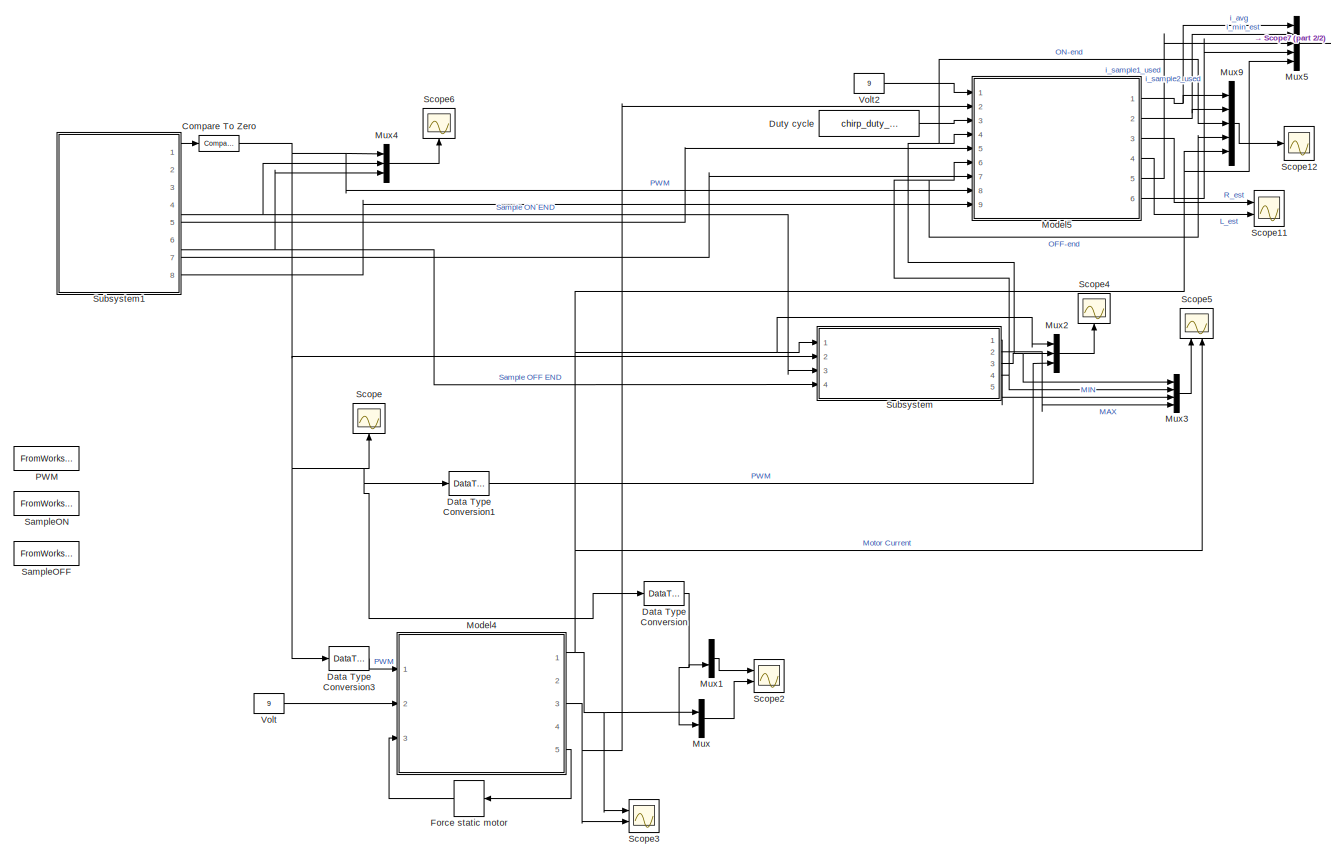
[diagram: root canvas - part 1/2, most of the canvas]
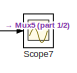
[diagram: root canvas - part 2/2, top right region]
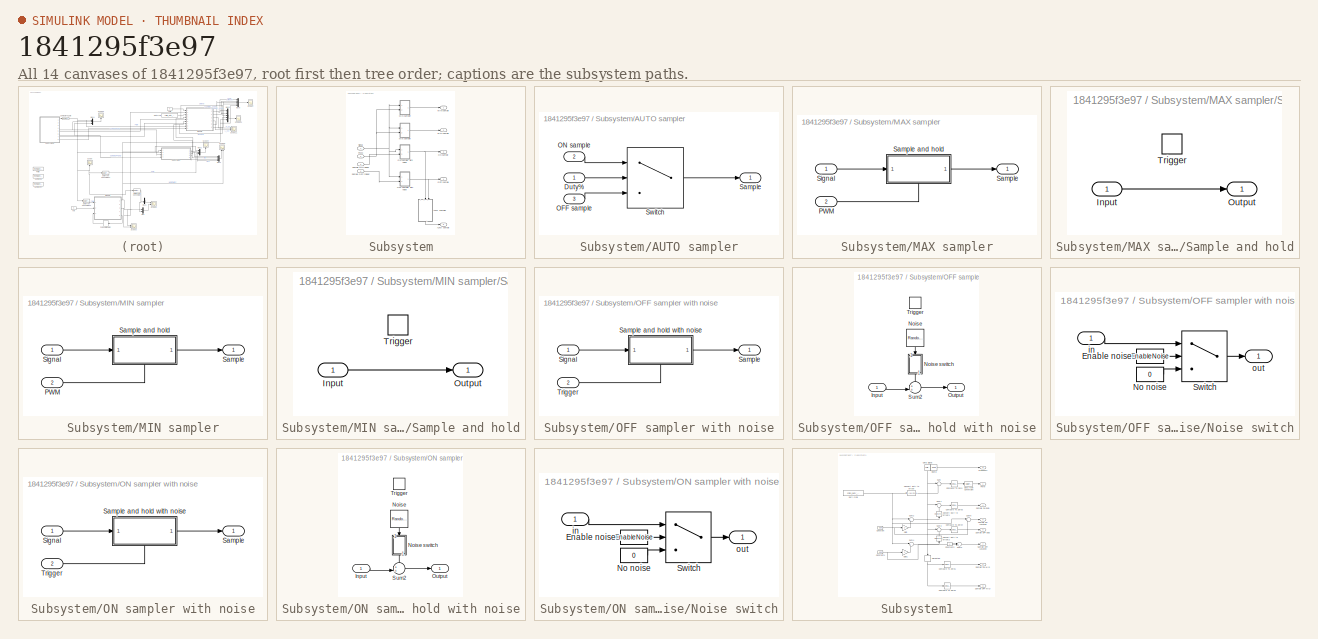
[diagram: thumbnail index - all 14 canvases of the model, root first then tree order]
MODEL slx_1841295f3e97
KIND model
CONFIG AbsTol = auto
CONFIG EnableMultiTasking = off
CONFIG FixedStep = auto
CONFIG InitFcn = Parameters_Model\nParameters_Simulation\nParameters_Test_Chirp\nParameters_Estimators
CONFIG MaxStep = 1/(PWM_Resolution*PWM_Frequency)
CONFIG MinStep = auto
CONFIG PreLoadFcn = modelDir = fileparts(get_param(bdroot, 'FileName'));\naddpath(fullfile(modelDir,'../Parameters'));\naddpath(fullfile(modelDir,'subsystems'));\naddpath(fullfile(modelDir,'../DesignExploration/functions')); % for PWM_Generator\n\nParameters_Model\nParameters_Simulation\nParameters_Estimators\nParameters_Test_Chirp
CONFIG RelTol = 1e-3
CONFIG SampleTimeConstraint = Unconstrained
CONFIG Solver = VariableStepAuto
CONFIG SolverName = VariableStepAuto
CONFIG StartTime = 0.0
CONFIG StopTime = chirp_t_end
BLOCK [Reference] Compare To Zero  REF=simulink/Logic and Bit
Operations/Compare
To Zero
  Ports = [1, 1]
  SourceBlock = simulink/Logic and Bit\nOperations/Compare\nTo Zero
  SourceProductBaseCode = SL
  SourceProductName = Simulink
  SourceType = Compare To Zero
BLOCK [DataTypeConversion] Data Type Conversion
  RndMeth = Round
  SaturateOnIntegerOverflow = off
BLOCK [DataTypeConversion] Data Type Conversion1
  RndMeth = Round
  SaturateOnIntegerOverflow = off
BLOCK [DataTypeConversion] Data Type Conversion3
  RndMeth = Round
  SaturateOnIntegerOverflow = off
BLOCK [Constant] Duty cycle
  Value = chirp_duty_cycle
BLOCK [ManualSwitch] Force static motor
BLOCK [ModelReference] Model4
  ModelNameDialog = DC_Motor_BrakeMode
  ModelReferenceVersion = 1.43
  Ports = [3, 5]
BLOCK [ModelReference] Model5
  ModelNameDialog = RL_EKF_
  ModelReferenceVersion = 1.70
  Ports = [9, 6]
BLOCK [Mux] Mux
  DisplayOption = bar
  Inputs = 2
  Ports = [2, 1]
BLOCK [Mux] Mux1
  DisplayOption = bar
  Inputs = 2
  Ports = [2, 1]
BLOCK [Mux] Mux2
  DisplayOption = bar
  Inputs = 3
  Ports = [3, 1]
BLOCK [Mux] Mux3
  DisplayOption = bar
  Ports = [4, 1]
BLOCK [Mux] Mux4
  DisplayOption = bar
  Inputs = 3
  Ports = [3, 1]
BLOCK [Mux] Mux5
  DisplayOption = bar
  Inputs = 5
  Ports = [5, 1]
BLOCK [Mux] Mux9
  DisplayOption = bar
  Inputs = 5
  Ports = [5, 1]
BLOCK [FromWorkspace] PWM
  Interpolate = off
  OutputAfterFinalValue = Holding final value
  SampleTime = 0
  VariableName = PWM
  ZeroCross = on
BLOCK [FromWorkspace] SampleOFF
  Interpolate = off
  OutputAfterFinalValue = Holding final value
  SampleTime = 0
  VariableName = SampleOFF
  ZeroCross = on
BLOCK [FromWorkspace] SampleON
  Interpolate = off
  OutputAfterFinalValue = Holding final value
  SampleTime = 0
  VariableName = SampleON
  ZeroCross = on
BLOCK [Scope] Scope
  Floating = off
  NumInputPorts = 1
  Ports = [1]
  ScopeSpecificationString = Simulink.scopes.TimeScopeBlockCfg('CurrentConfiguration', extmgr.ConfigurationSet(extmgr.Configuration('Core','General UI',true),extmgr.Configuration('Core','Source UI',true),extmgr.Configuration('Sources','WiredSimulink',true),extmgr.Configuration('Visuals','Time Domain',true,'SerializedDisplays',{struct('MinYLimReal','-0.125','MaxYLimReal','1.125','YLabelReal','','MinYLimMag','0.00000','MaxYLimM...<+1409ch>
BLOCK [Scope] Scope11
  Floating = off
  NumInputPorts = 2
  Ports = [2]
  ScopeSpecificationString = Simulink.scopes.TimeScopeBlockCfg('CurrentConfiguration', extmgr.ConfigurationSet(extmgr.Configuration('Core','General UI',true),extmgr.Configuration('Core','Source UI',true),extmgr.Configuration('Sources','WiredSimulink',true,'DataLoggingVariableName','ScopeData3'),extmgr.Configuration('Visuals','Time Domain',true,'SerializedDisplays',{struct('MinYLimReal','0.78739','MaxYLimReal','2.9135','YLabel...<+2242ch>
BLOCK [Scope] Scope12
  Floating = off
  NumInputPorts = 1
  Ports = [1]
  ScopeSpecificationString = Simulink.scopes.TimeScopeBlockCfg('CurrentConfiguration', extmgr.ConfigurationSet(extmgr.Configuration('Core','General UI',true),extmgr.Configuration('Core','Source UI',true),extmgr.Configuration('Sources','WiredSimulink',true,'DataLoggingVariableName','ScopeData2'),extmgr.Configuration('Visuals','Time Domain',true,'SerializedDisplays',{struct('MinYLimReal','-0.28888','MaxYLimReal','2.59989','YLab...<+1705ch>
BLOCK [Scope] Scope2
  Floating = off
  NumInputPorts = 2
  Ports = [2]
  ScopeSpecificationString = Simulink.scopes.TimeScopeBlockCfg('CurrentConfiguration', extmgr.ConfigurationSet(extmgr.Configuration('Core','General UI',true),extmgr.Configuration('Core','Source UI',true),extmgr.Configuration('Sources','WiredSimulink',true,'DataLoggingVariableName','ScopeData1'),extmgr.Configuration('Visuals','Time Domain',true,'SerializedDisplays',{struct('MinYLimReal','-0.125','MaxYLimReal','1.125','YLabelRe...<+2525ch>
BLOCK [Scope] Scope3
  Floating = off
  NumInputPorts = 2
  Ports = [2]
  ScopeSpecificationString = Simulink.scopes.TimeScopeBlockCfg('CurrentConfiguration', extmgr.ConfigurationSet(extmgr.Configuration('Core','General UI',true),extmgr.Configuration('Core','Source UI',true),extmgr.Configuration('Sources','WiredSimulink',true,'DataLoggingVariableName','ScopeData2'),extmgr.Configuration('Visuals','Time Domain',true,'SerializedDisplays',{struct('MinYLimReal','-0.43011','MaxYLimReal','3.87103','YLab...<+2148ch>
BLOCK [Scope] Scope4
  Floating = off
  NumInputPorts = 1
  Ports = [1]
  ScopeSpecificationString = Simulink.scopes.TimeScopeBlockCfg('CurrentConfiguration', extmgr.ConfigurationSet(extmgr.Configuration('Core','General UI',true),extmgr.Configuration('Core','Source UI',true),extmgr.Configuration('Sources','WiredSimulink',true,'DataLoggingVariableName','ScopeData1'),extmgr.Configuration('Visuals','Time Domain',true,'SerializedDisplays',{struct('MinYLimReal','-1.01158','MaxYLimReal','2.55155','YLab...<+1878ch>
BLOCK [Scope] Scope5
  Floating = off
  NumInputPorts = 2
  Ports = [2]
  ScopeSpecificationString = Simulink.scopes.TimeScopeBlockCfg('CurrentConfiguration', extmgr.ConfigurationSet(extmgr.Configuration('Core','General UI',true),extmgr.Configuration('Core','Source UI',true),extmgr.Configuration('Sources','WiredSimulink',true,'DataLoggingVariableName','ScopeData2'),extmgr.Configuration('Visuals','Time Domain',true,'SerializedDisplays',{struct('MinYLimReal','-1.01158','MaxYLimReal','2.55155','YLab...<+1673ch>
BLOCK [Scope] Scope6
  Floating = off
  NumInputPorts = 1
  Ports = [1]
  ScopeSpecificationString = Simulink.scopes.TimeScopeBlockCfg('CurrentConfiguration', extmgr.ConfigurationSet(extmgr.Configuration('Core','General UI',true),extmgr.Configuration('Core','Source UI',true),extmgr.Configuration('Sources','WiredSimulink',true,'DataLoggingVariableName','ScopeData1'),extmgr.Configuration('Visuals','Time Domain',true,'SerializedDisplays',{struct('MinYLimReal','-0.125','MaxYLimReal','1.125','YLabelRe...<+1913ch>
BLOCK [Scope] Scope7
  Floating = off
  NumInputPorts = 1
  Ports = [1]
  ScopeSpecificationString = Simulink.scopes.TimeScopeBlockCfg('CurrentConfiguration', extmgr.ConfigurationSet(extmgr.Configuration('Core','General UI',true),extmgr.Configuration('Core','Source UI',true),extmgr.Configuration('Sources','WiredSimulink',true,'DataLoggingVariableName','ScopeData4'),extmgr.Configuration('Visuals','Time Domain',true,'SerializedDisplays',{struct('MinYLimReal','-0.28888','MaxYLimReal','2.59989','YLab...<+1714ch>
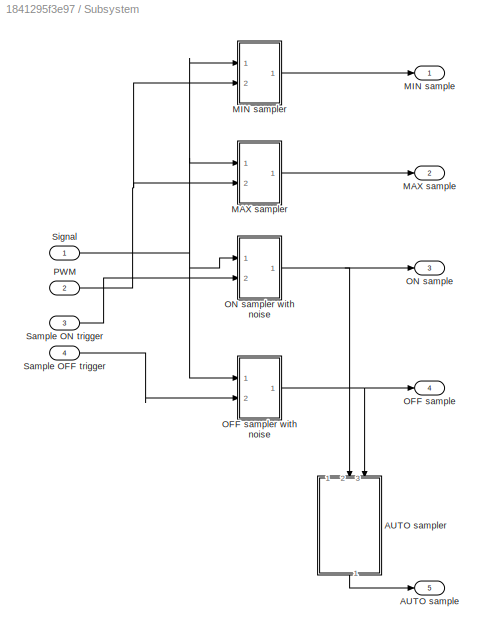
BLOCK [SubSystem] Subsystem
  Ports = [4, 5]
  RequestExecContextInheritance = off
BLOCK [Outport] Subsystem/AUTO sample
  IconDisplay = Port number
  Port = 5
  VectorParamsAs1DForOutWhenUnconnected = off
BLOCK [SubSystem] Subsystem/AUTO sampler
  Ports = [3, 1]
  RequestExecContextInheritance = off
BLOCK [Inport] Subsystem/AUTO sampler/Duty%
  IconDisplay = Port number
  OutDataTypeStr = double
BLOCK [Inport] Subsystem/AUTO sampler/OFF sample
  IconDisplay = Port number
  Port = 3
BLOCK [Inport] Subsystem/AUTO sampler/ON sample
  IconDisplay = Port number
  Port = 2
BLOCK [Outport] Subsystem/AUTO sampler/Sample
  IconDisplay = Port number
  VectorParamsAs1DForOutWhenUnconnected = off
BLOCK [Switch] Subsystem/AUTO sampler/Switch
  InputSameDT = off
  SaturateOnIntegerOverflow = off
  Threshold = 0.5
BLOCK [Outport] Subsystem/MAX sample
  IconDisplay = Port number
  Port = 2
  VectorParamsAs1DForOutWhenUnconnected = off
BLOCK [SubSystem] Subsystem/MAX sampler
  Ports = [2, 1]
  RequestExecContextInheritance = off
BLOCK [Inport] Subsystem/MAX sampler/PWM
  IconDisplay = Port number
  Port = 2
BLOCK [Outport] Subsystem/MAX sampler/Sample
  IconDisplay = Port number
  VectorParamsAs1DForOutWhenUnconnected = off
BLOCK [SubSystem] Subsystem/MAX sampler/Sample and hold
  Ports = [1, 1, 0, 1]
  RequestExecContextInheritance = off
BLOCK [Inport] Subsystem/MAX sampler/Sample and hold/Input
  IconDisplay = Port number
BLOCK [Outport] Subsystem/MAX sampler/Sample and hold/Output
  IconDisplay = Port number
  VectorParamsAs1DForOutWhenUnconnected = off
BLOCK [TriggerPort] Subsystem/MAX sampler/Sample and hold/Trigger
  PortDimensions = 1
  Ports = []
  StatesWhenEnabling = held
  TriggerType = falling
  VariantControl = Variant
BLOCK [Inport] Subsystem/MAX sampler/Signal
  IconDisplay = Port number
BLOCK [Outport] Subsystem/MIN sample
  IconDisplay = Port number
  VectorParamsAs1DForOutWhenUnconnected = off
BLOCK [SubSystem] Subsystem/MIN sampler
  Ports = [2, 1]
  RequestExecContextInheritance = off
BLOCK [Inport] Subsystem/MIN sampler/PWM
  IconDisplay = Port number
  Port = 2
BLOCK [Outport] Subsystem/MIN sampler/Sample
  IconDisplay = Port number
  VectorParamsAs1DForOutWhenUnconnected = off
BLOCK [SubSystem] Subsystem/MIN sampler/Sample and hold
  Ports = [1, 1, 0, 1]
  RequestExecContextInheritance = off
BLOCK [Inport] Subsystem/MIN sampler/Sample and hold/Input
  IconDisplay = Port number
BLOCK [Outport] Subsystem/MIN sampler/Sample and hold/Output
  IconDisplay = Port number
  VectorParamsAs1DForOutWhenUnconnected = off
BLOCK [TriggerPort] Subsystem/MIN sampler/Sample and hold/Trigger
  PortDimensions = 1
  Ports = []
  StatesWhenEnabling = held
  VariantControl = Variant
BLOCK [Inport] Subsystem/MIN sampler/Signal
  IconDisplay = Port number
BLOCK [Outport] Subsystem/OFF sample
  IconDisplay = Port number
  Port = 4
  VectorParamsAs1DForOutWhenUnconnected = off
BLOCK [SubSystem] Subsystem/OFF sampler with noise
  Ports = [2, 1]
  RequestExecContextInheritance = off
BLOCK [Outport] Subsystem/OFF sampler with noise/Sample
  IconDisplay = Port number
  VectorParamsAs1DForOutWhenUnconnected = off
BLOCK [SubSystem] Subsystem/OFF sampler with noise/Sample and hold with noise
  Ports = [1, 1, 0, 1]
  RequestExecContextInheritance = off
BLOCK [Inport] Subsystem/OFF sampler with noise/Sample and hold with noise/Input
  IconDisplay = Port number
BLOCK [RandomNumber] Subsystem/OFF sampler with noise/Sample and hold with noise/Noise
  Seed = 32
  Variance = sensor_sigma2_current_sense
BLOCK [SubSystem] Subsystem/OFF sampler with noise/Sample and hold with noise/Noise switch
  Ports = [1, 1]
  RequestExecContextInheritance = off
BLOCK [Constant] Subsystem/OFF sampler with noise/Sample and hold with noise/Noise switch/Enable noise
  Value = EnableNoise
BLOCK [Constant] Subsystem/OFF sampler with noise/Sample and hold with noise/Noise switch/No noise
  Value = 0
BLOCK [Switch] Subsystem/OFF sampler with noise/Sample and hold with noise/Noise switch/Switch
  Criteria = u2 > Threshold
  InputSameDT = off
  SaturateOnIntegerOverflow = off
BLOCK [Inport] Subsystem/OFF sampler with noise/Sample and hold with noise/Noise switch/in
  IconDisplay = Port number
BLOCK [Outport] Subsystem/OFF sampler with noise/Sample and hold with noise/Noise switch/out
  IconDisplay = Port number
  VectorParamsAs1DForOutWhenUnconnected = off
BLOCK [Outport] Subsystem/OFF sampler with noise/Sample and hold with noise/Output
  IconDisplay = Port number
  VectorParamsAs1DForOutWhenUnconnected = off
BLOCK [Sum] Subsystem/OFF sampler with noise/Sample and hold with noise/Sum2
  IconShape = round
  InputSameDT = off
  Inputs = ++|
  OutDataTypeStr = Inherit: Inherit via internal rule
  Ports = [2, 1]
  SaturateOnIntegerOverflow = off
BLOCK [TriggerPort] Subsystem/OFF sampler with noise/Sample and hold with noise/Trigger
  PortDimensions = 1
  Ports = []
  StatesWhenEnabling = held
  VariantControl = Variant
BLOCK [Inport] Subsystem/OFF sampler with noise/Signal
  IconDisplay = Port number
BLOCK [Inport] Subsystem/OFF sampler with noise/Trigger
  IconDisplay = Port number
  Port = 2
BLOCK [Outport] Subsystem/ON sample
  IconDisplay = Port number
  Port = 3
  VectorParamsAs1DForOutWhenUnconnected = off
BLOCK [SubSystem] Subsystem/ON sampler with noise
  Ports = [2, 1]
  RequestExecContextInheritance = off
BLOCK [Outport] Subsystem/ON sampler with noise/Sample
  IconDisplay = Port number
  VectorParamsAs1DForOutWhenUnconnected = off
BLOCK [SubSystem] Subsystem/ON sampler with noise/Sample and hold with noise
  Ports = [1, 1, 0, 1]
  RequestExecContextInheritance = off
BLOCK [Inport] Subsystem/ON sampler with noise/Sample and hold with noise/Input
  IconDisplay = Port number
BLOCK [RandomNumber] Subsystem/ON sampler with noise/Sample and hold with noise/Noise
  Seed = 55
  Variance = sensor_sigma2_current_sense
BLOCK [SubSystem] Subsystem/ON sampler with noise/Sample and hold with noise/Noise switch
  Ports = [1, 1]
  RequestExecContextInheritance = off
BLOCK [Constant] Subsystem/ON sampler with noise/Sample and hold with noise/Noise switch/Enable noise
  Value = EnableNoise
BLOCK [Constant] Subsystem/ON sampler with noise/Sample and hold with noise/Noise switch/No noise
  Value = 0
BLOCK [Switch] Subsystem/ON sampler with noise/Sample and hold with noise/Noise switch/Switch
  Criteria = u2 > Threshold
  InputSameDT = off
  SaturateOnIntegerOverflow = off
BLOCK [Inport] Subsystem/ON sampler with noise/Sample and hold with noise/Noise switch/in
  IconDisplay = Port number
BLOCK [Outport] Subsystem/ON sampler with noise/Sample and hold with noise/Noise switch/out
  IconDisplay = Port number
  VectorParamsAs1DForOutWhenUnconnected = off
BLOCK [Outport] Subsystem/ON sampler with noise/Sample and hold with noise/Output
  IconDisplay = Port number
  VectorParamsAs1DForOutWhenUnconnected = off
BLOCK [Sum] Subsystem/ON sampler with noise/Sample and hold with noise/Sum2
  IconShape = round
  InputSameDT = off
  Inputs = ++|
  OutDataTypeStr = Inherit: Inherit via internal rule
  Ports = [2, 1]
  SaturateOnIntegerOverflow = off
BLOCK [TriggerPort] Subsystem/ON sampler with noise/Sample and hold with noise/Trigger
  PortDimensions = 1
  Ports = []
  StatesWhenEnabling = held
  TriggerType = falling
  VariantControl = Variant
BLOCK [Inport] Subsystem/ON sampler with noise/Signal
  IconDisplay = Port number
BLOCK [Inport] Subsystem/ON sampler with noise/Trigger
  IconDisplay = Port number
  Port = 2
BLOCK [Inport] Subsystem/PWM
  IconDisplay = Port number
  Port = 2
BLOCK [Inport] Subsystem/Sample OFF trigger
  IconDisplay = Port number
  Port = 4
BLOCK [Inport] Subsystem/Sample ON trigger
  IconDisplay = Port number
  Port = 3
BLOCK [Inport] Subsystem/Signal
  IconDisplay = Port number
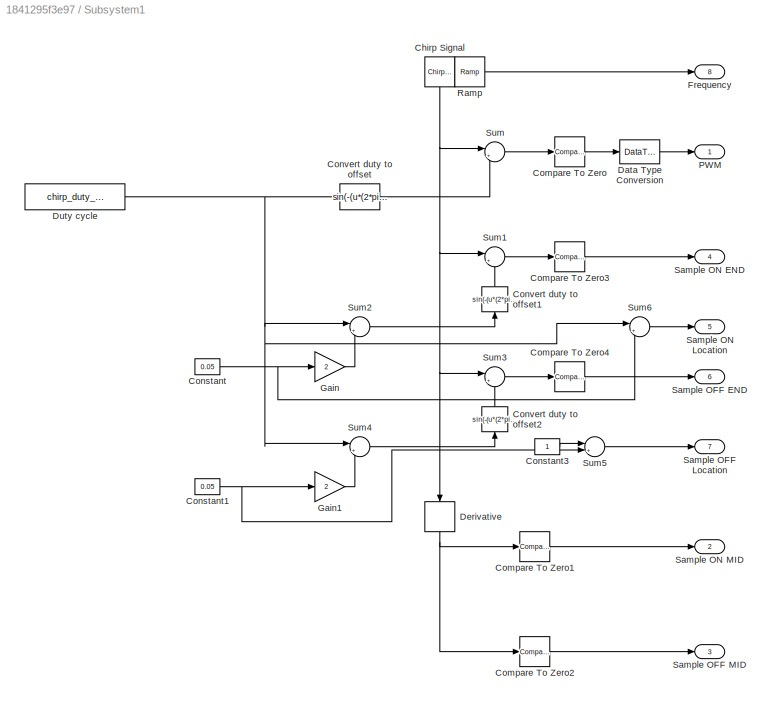
BLOCK [SubSystem] Subsystem1
  Ports = [0, 8]
  RequestExecContextInheritance = off
BLOCK [Reference] Subsystem1/Chirp Signal  REF=simulink/Sources/Chirp Signal
  Ports = [0, 1]
  SourceBlock = simulink/Sources/Chirp Signal
  SourceProductBaseCode = SL
  SourceProductName = Simulink
  SourceType = chirp
BLOCK [Reference] Subsystem1/Compare To Zero  REF=simulink/Logic and Bit
Operations/Compare
To Zero
  Ports = [1, 1]
  SourceBlock = simulink/Logic and Bit\nOperations/Compare\nTo Zero
  SourceProductBaseCode = SL
  SourceProductName = Simulink
  SourceType = Compare To Zero
BLOCK [Reference] Subsystem1/Compare To Zero1  REF=simulink/Logic and Bit
Operations/Compare
To Zero
  Ports = [1, 1]
  SourceBlock = simulink/Logic and Bit\nOperations/Compare\nTo Zero
  SourceProductBaseCode = SL
  SourceProductName = Simulink
  SourceType = Compare To Zero
BLOCK [Reference] Subsystem1/Compare To Zero2  REF=simulink/Logic and Bit
Operations/Compare
To Zero
  Ports = [1, 1]
  SourceBlock = simulink/Logic and Bit\nOperations/Compare\nTo Zero
  SourceProductBaseCode = SL
  SourceProductName = Simulink
  SourceType = Compare To Zero
BLOCK [Reference] Subsystem1/Compare To Zero3  REF=simulink/Logic and Bit
Operations/Compare
To Zero
  Ports = [1, 1]
  SourceBlock = simulink/Logic and Bit\nOperations/Compare\nTo Zero
  SourceProductBaseCode = SL
  SourceProductName = Simulink
  SourceType = Compare To Zero
BLOCK [Reference] Subsystem1/Compare To Zero4  REF=simulink/Logic and Bit
Operations/Compare
To Zero
  Ports = [1, 1]
  SourceBlock = simulink/Logic and Bit\nOperations/Compare\nTo Zero
  SourceProductBaseCode = SL
  SourceProductName = Simulink
  SourceType = Compare To Zero
BLOCK [Constant] Subsystem1/Constant
  Value = 0.05
BLOCK [Constant] Subsystem1/Constant1
  Value = 0.05
BLOCK [Constant] Subsystem1/Constant3
BLOCK [Fcn] Subsystem1/Convert duty to offset
  Expr = sin(-(u*(2*pi) - pi) / 2)
BLOCK [Fcn] Subsystem1/Convert duty to offset1
  Expr = sin(-(u*(2*pi) - pi) / 2)
BLOCK [Fcn] Subsystem1/Convert duty to offset2
  Expr = sin(-(u*(2*pi) - pi) / 2)
BLOCK [DataTypeConversion] Subsystem1/Data Type Conversion
  RndMeth = Round
  SaturateOnIntegerOverflow = off
BLOCK [Derivative] Subsystem1/Derivative
BLOCK [Constant] Subsystem1/Duty cycle
  Value = chirp_duty_cycle
BLOCK [Outport] Subsystem1/Frequency
  IconDisplay = Port number
  Port = 8
  VectorParamsAs1DForOutWhenUnconnected = off
BLOCK [Gain] Subsystem1/Gain
  Gain = 2
  OutDataTypeStr = Inherit: Inherit via internal rule
  ParamDataTypeStr = Inherit: Inherit via internal rule
  SaturateOnIntegerOverflow = off
BLOCK [Gain] Subsystem1/Gain1
  Gain = 2
  OutDataTypeStr = Inherit: Inherit via internal rule
  ParamDataTypeStr = Inherit: Inherit via internal rule
  SaturateOnIntegerOverflow = off
BLOCK [Outport] Subsystem1/PWM
  IconDisplay = Port number
  OutDataTypeStr = int8
  VectorParamsAs1DForOutWhenUnconnected = off
BLOCK [Reference] Subsystem1/Ramp  REF=simulink/Sources/Ramp
  Ports = [0, 1]
  SourceBlock = simulink/Sources/Ramp
  SourceProductBaseCode = SL
  SourceProductName = Simulink
  SourceType = Ramp
BLOCK [Outport] Subsystem1/Sample OFF END
  IconDisplay = Port number
  Port = 6
  VectorParamsAs1DForOutWhenUnconnected = off
BLOCK [Outport] Subsystem1/Sample OFF Location
  IconDisplay = Port number
  Port = 7
  VectorParamsAs1DForOutWhenUnconnected = off
BLOCK [Outport] Subsystem1/Sample OFF MID
  IconDisplay = Port number
  Port = 3
  VectorParamsAs1DForOutWhenUnconnected = off
BLOCK [Outport] Subsystem1/Sample ON END
  IconDisplay = Port number
  Port = 4
  VectorParamsAs1DForOutWhenUnconnected = off
BLOCK [Outport] Subsystem1/Sample ON Location
  IconDisplay = Port number
  Port = 5
  VectorParamsAs1DForOutWhenUnconnected = off
BLOCK [Outport] Subsystem1/Sample ON MID
  IconDisplay = Port number
  Port = 2
  VectorParamsAs1DForOutWhenUnconnected = off
BLOCK [Sum] Subsystem1/Sum
  IconShape = round
  InputSameDT = off
  Inputs = |+-
  OutDataTypeStr = Inherit: Inherit via internal rule
  Ports = [2, 1]
  SaturateOnIntegerOverflow = off
BLOCK [Sum] Subsystem1/Sum1
  IconShape = round
  InputSameDT = off
  Inputs = |+-
  OutDataTypeStr = Inherit: Inherit via internal rule
  Ports = [2, 1]
  SaturateOnIntegerOverflow = off
BLOCK [Sum] Subsystem1/Sum2
  IconShape = round
  InputSameDT = off
  Inputs = |+-
  OutDataTypeStr = Inherit: Inherit via internal rule
  Ports = [2, 1]
  SaturateOnIntegerOverflow = off
BLOCK [Sum] Subsystem1/Sum3
  IconShape = round
  InputSameDT = off
  Inputs = |+-
  OutDataTypeStr = Inherit: Inherit via internal rule
  Ports = [2, 1]
  SaturateOnIntegerOverflow = off
BLOCK [Sum] Subsystem1/Sum4
  IconShape = round
  InputSameDT = off
  Inputs = |++
  OutDataTypeStr = Inherit: Inherit via internal rule
  Ports = [2, 1]
  SaturateOnIntegerOverflow = off
BLOCK [Sum] Subsystem1/Sum5
  IconShape = round
  InputSameDT = off
  Inputs = |+-
  OutDataTypeStr = Inherit: Inherit via internal rule
  Ports = [2, 1]
  SaturateOnIntegerOverflow = off
BLOCK [Sum] Subsystem1/Sum6
  IconShape = round
  InputSameDT = off
  Inputs = |+-
  OutDataTypeStr = Inherit: Inherit via internal rule
  Ports = [2, 1]
  SaturateOnIntegerOverflow = off
BLOCK [Constant] Volt
  Value = 9
BLOCK [Constant] Volt2
  Value = 9
NET Compare To Zero:1 -> Data Type Conversion1:1, Data Type Conversion3:1, Data Type Conversion:1, Model5:8, Mux4:1, Scope:1, Subsystem:2
LINE Data Type Conversion1:1 -> Mux2:3
LINE Data Type Conversion3:1 -> Model4:1
NET Data Type Conversion:1 -> Mux1:2, Mux:2
LINE Duty cycle:1 -> Model5:3
LINE Force static motor:1 -> Model4:3
NET Model4:1 -> Mux2:1, Mux5:5, Mux9:5, Mux:1, Scope3:1, Scope5:2, Subsystem:1
NET Model4:3 -> Model5:2, Scope3:2
LINE Model4:5 -> Force static motor:1
NET Model5:1 -> Mux5:1, Mux9:1
NET Model5:2 -> Mux5:2, Mux9:2
LINE Model5:3 -> Scope11:1
LINE Model5:4 -> Scope11:2
LINE Model5:5 -> Mux5:3
LINE Model5:6 -> Mux5:4
LINE Mux1:1 -> Scope2:1
LINE Mux2:1 -> Scope4:1
LINE Mux3:1 -> Scope5:1
LINE Mux4:1 -> Scope6:1
LINE Mux5:1 -> Scope7:1
LINE Mux9:1 -> Scope12:1
LINE Mux:1 -> Scope2:2
LINE Subsystem/AUTO sampler/Duty%:1 -> Subsystem/AUTO sampler/Switch:2
LINE Subsystem/AUTO sampler/OFF sample:1 -> Subsystem/AUTO sampler/Switch:3
LINE Subsystem/AUTO sampler/ON sample:1 -> Subsystem/AUTO sampler/Switch:1
LINE Subsystem/AUTO sampler/Switch:1 -> Subsystem/AUTO sampler/Sample:1
LINE Subsystem/AUTO sampler:1 -> Subsystem/AUTO sample:1
LINE Subsystem/MAX sampler/PWM:1 -> Subsystem/MAX sampler/Sample and hold:trigger
LINE Subsystem/MAX sampler/Sample and hold/Input:1 -> Subsystem/MAX sampler/Sample and hold/Output:1
LINE Subsystem/MAX sampler/Sample and hold:1 -> Subsystem/MAX sampler/Sample:1
LINE Subsystem/MAX sampler/Signal:1 -> Subsystem/MAX sampler/Sample and hold:1
LINE Subsystem/MAX sampler:1 -> Subsystem/MAX sample:1
LINE Subsystem/MIN sampler/PWM:1 -> Subsystem/MIN sampler/Sample and hold:trigger
LINE Subsystem/MIN sampler/Sample and hold/Input:1 -> Subsystem/MIN sampler/Sample and hold/Output:1
LINE Subsystem/MIN sampler/Sample and hold:1 -> Subsystem/MIN sampler/Sample:1
LINE Subsystem/MIN sampler/Signal:1 -> Subsystem/MIN sampler/Sample and hold:1
LINE Subsystem/MIN sampler:1 -> Subsystem/MIN sample:1
LINE Subsystem/OFF sampler with noise/Sample and hold with noise/Input:1 -> Subsystem/OFF sampler with noise/Sample and hold with noise/Sum2:2
LINE Subsystem/OFF sampler with noise/Sample and hold with noise/Noise switch/Enable noise:1 -> Subsystem/OFF sampler with noise/Sample and hold with noise/Noise switch/Switch:2
LINE Subsystem/OFF sampler with noise/Sample and hold with noise/Noise switch/No noise:1 -> Subsystem/OFF sampler with noise/Sample and hold with noise/Noise switch/Switch:3
LINE Subsystem/OFF sampler with noise/Sample and hold with noise/Noise switch/Switch:1 -> Subsystem/OFF sampler with noise/Sample and hold with noise/Noise switch/out:1
LINE Subsystem/OFF sampler with noise/Sample and hold with noise/Noise switch/in:1 -> Subsystem/OFF sampler with noise/Sample and hold with noise/Noise switch/Switch:1
LINE Subsystem/OFF sampler with noise/Sample and hold with noise/Noise switch:1 -> Subsystem/OFF sampler with noise/Sample and hold with noise/Sum2:1
LINE Subsystem/OFF sampler with noise/Sample and hold with noise/Noise:1 -> Subsystem/OFF sampler with noise/Sample and hold with noise/Noise switch:1
LINE Subsystem/OFF sampler with noise/Sample and hold with noise/Sum2:1 -> Subsystem/OFF sampler with noise/Sample and hold with noise/Output:1
LINE Subsystem/OFF sampler with noise/Sample and hold with noise:1 -> Subsystem/OFF sampler with noise/Sample:1
LINE Subsystem/OFF sampler with noise/Signal:1 -> Subsystem/OFF sampler with noise/Sample and hold with noise:1
LINE Subsystem/OFF sampler with noise/Trigger:1 -> Subsystem/OFF sampler with noise/Sample and hold with noise:trigger
NET Subsystem/OFF sampler with noise:1 -> Subsystem/AUTO sampler:3, Subsystem/OFF sample:1
LINE Subsystem/ON sampler with noise/Sample and hold with noise/Input:1 -> Subsystem/ON sampler with noise/Sample and hold with noise/Sum2:2
LINE Subsystem/ON sampler with noise/Sample and hold with noise/Noise switch/Enable noise:1 -> Subsystem/ON sampler with noise/Sample and hold with noise/Noise switch/Switch:2
LINE Subsystem/ON sampler with noise/Sample and hold with noise/Noise switch/No noise:1 -> Subsystem/ON sampler with noise/Sample and hold with noise/Noise switch/Switch:3
LINE Subsystem/ON sampler with noise/Sample and hold with noise/Noise switch/Switch:1 -> Subsystem/ON sampler with noise/Sample and hold with noise/Noise switch/out:1
LINE Subsystem/ON sampler with noise/Sample and hold with noise/Noise switch/in:1 -> Subsystem/ON sampler with noise/Sample and hold with noise/Noise switch/Switch:1
LINE Subsystem/ON sampler with noise/Sample and hold with noise/Noise switch:1 -> Subsystem/ON sampler with noise/Sample and hold with noise/Sum2:1
LINE Subsystem/ON sampler with noise/Sample and hold with noise/Noise:1 -> Subsystem/ON sampler with noise/Sample and hold with noise/Noise switch:1
LINE Subsystem/ON sampler with noise/Sample and hold with noise/Sum2:1 -> Subsystem/ON sampler with noise/Sample and hold with noise/Output:1
LINE Subsystem/ON sampler with noise/Sample and hold with noise:1 -> Subsystem/ON sampler with noise/Sample:1
LINE Subsystem/ON sampler with noise/Signal:1 -> Subsystem/ON sampler with noise/Sample and hold with noise:1
LINE Subsystem/ON sampler with noise/Trigger:1 -> Subsystem/ON sampler with noise/Sample and hold with noise:trigger
NET Subsystem/ON sampler with noise:1 -> Subsystem/AUTO sampler:2, Subsystem/ON sample:1
NET Subsystem/PWM:1 -> Subsystem/MAX sampler:2, Subsystem/MIN sampler:2
LINE Subsystem/Sample OFF trigger:1 -> Subsystem/OFF sampler with noise:2
LINE Subsystem/Sample ON trigger:1 -> Subsystem/ON sampler with noise:2
NET Subsystem/Signal:1 -> Subsystem/MAX sampler:1, Subsystem/MIN sampler:1, Subsystem/OFF sampler with noise:1, Subsystem/ON sampler with noise:1
NET Subsystem1/Chirp Signal:1 -> Subsystem1/Derivative:1, Subsystem1/Sum1:1, Subsystem1/Sum3:1, Subsystem1/Sum:1
LINE Subsystem1/Compare To Zero1:1 -> Subsystem1/Sample ON MID:1
LINE Subsystem1/Compare To Zero2:1 -> Subsystem1/Sample OFF MID:1
LINE Subsystem1/Compare To Zero3:1 -> Subsystem1/Sample ON END:1
LINE Subsystem1/Compare To Zero4:1 -> Subsystem1/Sample OFF END:1
LINE Subsystem1/Compare To Zero:1 -> Subsystem1/Data Type Conversion:1
NET Subsystem1/Constant1:1 -> Subsystem1/Gain1:1, Subsystem1/Sum5:2
LINE Subsystem1/Constant3:1 -> Subsystem1/Sum5:1
NET Subsystem1/Constant:1 -> Subsystem1/Gain:1, Subsystem1/Sum6:2
LINE Subsystem1/Convert duty to offset1:1 -> Subsystem1/Sum1:2
LINE Subsystem1/Convert duty to offset2:1 -> Subsystem1/Sum3:2
LINE Subsystem1/Convert duty to offset:1 -> Subsystem1/Sum:2
LINE Subsystem1/Data Type Conversion:1 -> Subsystem1/PWM:1
NET Subsystem1/Derivative:1 -> Subsystem1/Compare To Zero1:1, Subsystem1/Compare To Zero2:1
NET Subsystem1/Duty cycle:1 -> Subsystem1/Convert duty to offset:1, Subsystem1/Sum2:1, Subsystem1/Sum4:1, Subsystem1/Sum6:1
LINE Subsystem1/Gain1:1 -> Subsystem1/Sum4:2
LINE Subsystem1/Gain:1 -> Subsystem1/Sum2:2
LINE Subsystem1/Ramp:1 -> Subsystem1/Frequency:1
LINE Subsystem1/Sum1:1 -> Subsystem1/Compare To Zero3:1
LINE Subsystem1/Sum2:1 -> Subsystem1/Convert duty to offset1:1
LINE Subsystem1/Sum3:1 -> Subsystem1/Compare To Zero4:1
LINE Subsystem1/Sum4:1 -> Subsystem1/Convert duty to offset2:1
LINE Subsystem1/Sum5:1 -> Subsystem1/Sample OFF Location:1
LINE Subsystem1/Sum6:1 -> Subsystem1/Sample ON Location:1
LINE Subsystem1/Sum:1 -> Subsystem1/Compare To Zero:1
LINE Subsystem1:1 -> Compare To Zero:1
NET Subsystem1:4 -> Mux4:2, Subsystem:3
LINE Subsystem1:5 -> Model5:5
NET Subsystem1:6 -> Mux4:3, Subsystem:4
LINE Subsystem1:7 -> Model5:7
LINE Subsystem1:8 -> Model5:9
LINE Subsystem:1 -> Mux3:3
LINE Subsystem:2 -> Mux3:4
NET Subsystem:3 -> Model5:4, Mux2:2, Mux3:1, Mux9:3
NET Subsystem:4 -> Model5:6, Mux3:2, Mux9:4
LINE Volt2:1 -> Model5:1
LINE Volt:1 -> Model4:2
note: NET lines group one-source signal fan-out (src -> all destinations, sorted); 1:1 wires keep LINE
